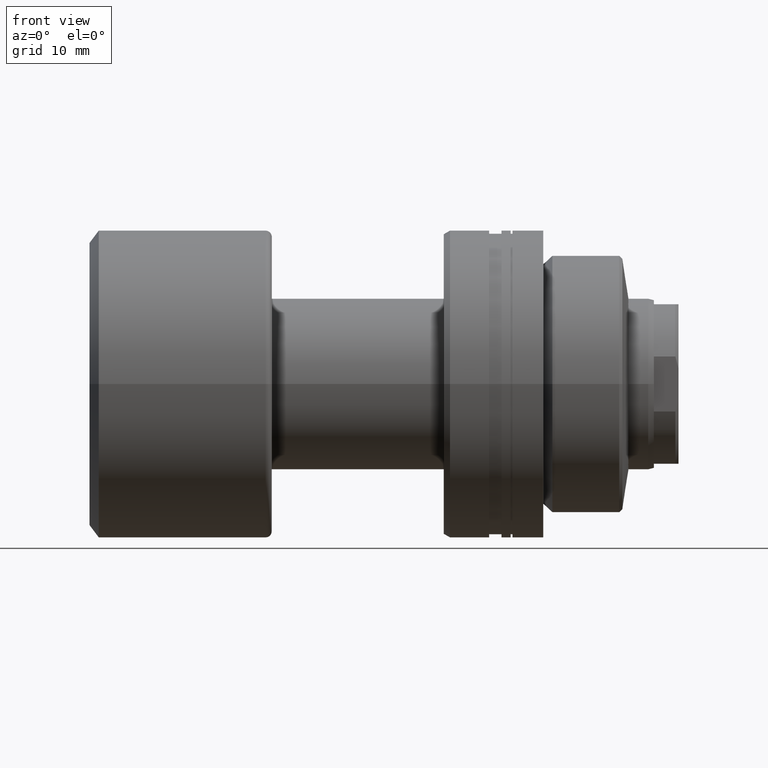
[diagram: clean part render]
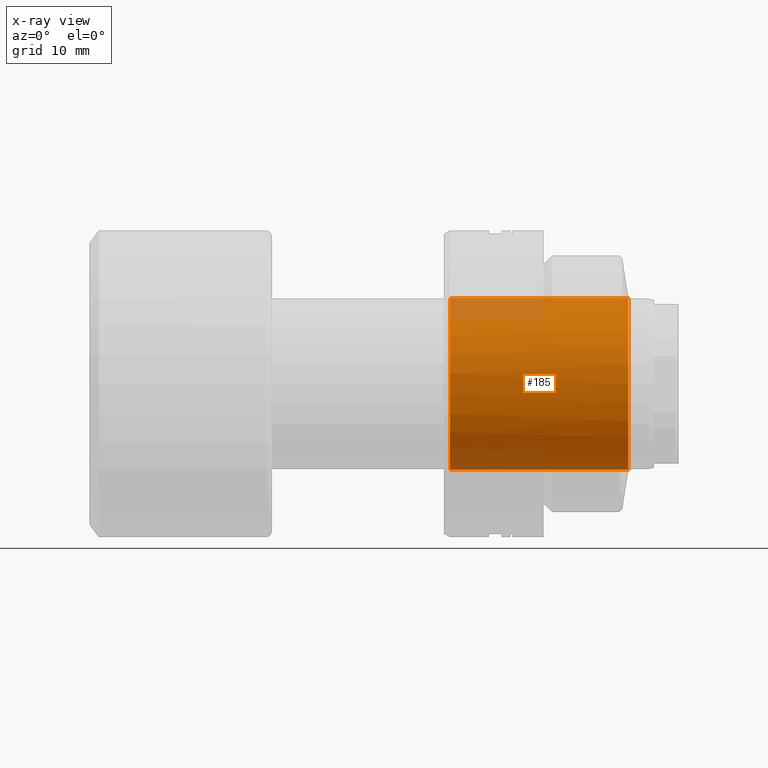
[diagram: x-ray — body ghosted, one internal face saturated and labeled with its STEP entity id]
A machine part, front view, then the same camera in x-ray: the body is ghosted and one INTERNAL B-rep face — a face not visible from any outside direction — is saturated and labeled: STEP entity #185.
In plain terms, the highlighted cylindrical surface (partial cylindrical patch) has radius 14 mm, axis along (1, 0, 0).
Its self-contained STEP definition (entity closure, byte-faithful):
#19 = DIRECTION ( 'NONE',  ( -1.000000000000000000, 0.000000000000000000, 0.000000000000000000 ) ) ;
#120 = CARTESIAN_POINT ( 'NONE',  ( -71.79797974644668557, 0.000000000000000000, 0.000000000000000000 ) ) ;
#183 = DIRECTION ( 'NONE',  ( 1.920586705545750655E-15, -1.000000000000000000, 0.000000000000000000 ) ) ;
#185 = ADVANCED_FACE ( 'NONE', ( #1365 ), #2281, .F. ) ;
#228 = CIRCLE ( 'NONE', #1864, 14.00000000000000178 ) ;
#243 = DIRECTION ( 'NONE',  ( 1.000000000000000000, -0.000000000000000000, -0.000000000000000000 ) ) ;
#266 = VERTEX_POINT ( 'NONE', #689 ) ;
#314 = DIRECTION ( 'NONE',  ( 1.000000000000000000, -0.000000000000000000, -0.000000000000000000 ) ) ;
#370 = CARTESIAN_POINT ( 'NONE',  ( -2.117073170732186593, 5.439376342916023700E-14, 0.000000000000000000 ) ) ;
#381 = CIRCLE ( 'NONE', #423, 14.00000000000000178 ) ;
#406 = VERTEX_POINT ( 'NONE', #448 ) ;
#409 = CARTESIAN_POINT ( 'NONE',  ( -71.79797974644668557, 0.000000000000000000, -14.00000000000000178 ) ) ;
#423 = AXIS2_PLACEMENT_3D ( 'NONE', #1109, #1653, #920 ) ;
#448 = CARTESIAN_POINT ( 'NONE',  ( -31.20000000000002061, 1.714505518806294835E-15, 14.00000000000000178 ) ) ;
#462 = EDGE_CURVE ( 'NONE', #266, #2227, #1838, .T. ) ;
#466 = DIRECTION ( 'NONE',  ( 1.000000000000000000, -0.000000000000000000, -0.000000000000000000 ) ) ;
#500 = AXIS2_PLACEMENT_3D ( 'NONE', #370, #1054, #183 ) ;
#511 = CARTESIAN_POINT ( 'NONE',  ( -2.117073170732186593, 1.714505518806296807E-15, 14.00000000000000178 ) ) ;
#588 = VERTEX_POINT ( 'NONE', #511 ) ;
#603 = ORIENTED_EDGE ( 'NONE', *, *, #770, .T. ) ;
#657 = DIRECTION ( 'NONE',  ( 0.000000000000000000, 0.000000000000000000, -1.000000000000000000 ) ) ;
#671 = LINE ( 'NONE', #1693, #1980 ) ;
#679 = CIRCLE ( 'NONE', #500, 14.00000000000000178 ) ;
#689 = CARTESIAN_POINT ( 'NONE',  ( -31.20000000000002061, 0.000000000000000000, -14.00000000000000178 ) ) ;
#704 = CARTESIAN_POINT ( 'NONE',  ( -31.20000000000002061, 0.000000000000000000, 0.000000000000000000 ) ) ;
#718 = DIRECTION ( 'NONE',  ( 0.000000000000000000, 0.000000000000000000, -1.000000000000000000 ) ) ;
#770 = EDGE_CURVE ( 'NONE', #266, #406, #228, .T. ) ;
#820 = AXIS2_PLACEMENT_3D ( 'NONE', #120, #466, #657 ) ;
#835 = ORIENTED_EDGE ( 'NONE', *, *, #1433, .F. ) ;
#845 = EDGE_CURVE ( 'NONE', #2227, #1808, #679, .T. ) ;
#920 = DIRECTION ( 'NONE',  ( 1.920586705545750655E-15, -1.000000000000000000, 0.000000000000000000 ) ) ;
#1054 = DIRECTION ( 'NONE',  ( -1.000000000000000000, -1.931394410353556421E-15, 0.000000000000000000 ) ) ;
#1064 = EDGE_CURVE ( 'NONE', #406, #588, #671, .T. ) ;
#1109 = CARTESIAN_POINT ( 'NONE',  ( -2.117073170732186593, 5.439376342916023700E-14, 0.000000000000000000 ) ) ;
#1252 = CARTESIAN_POINT ( 'NONE',  ( -2.117073170732159948, -13.99999999999994849, 0.000000000000000000 ) ) ;
#1365 = FACE_OUTER_BOUND ( 'NONE', #1595, .T. ) ;
#1433 = EDGE_CURVE ( 'NONE', #1808, #588, #381, .T. ) ;
#1595 = EDGE_LOOP ( 'NONE', ( #603, #2307, #835, #1698, #2145 ) ) ;
#1596 = VECTOR ( 'NONE', #243, 1000.000000000000000 ) ;
#1653 = DIRECTION ( 'NONE',  ( -1.000000000000000000, -1.931394410353556421E-15, 0.000000000000000000 ) ) ;
#1693 = CARTESIAN_POINT ( 'NONE',  ( -71.79797974644668557, 1.714505518806294835E-15, 14.00000000000000178 ) ) ;
#1698 = ORIENTED_EDGE ( 'NONE', *, *, #845, .F. ) ;
#1752 = CARTESIAN_POINT ( 'NONE',  ( -2.117073170732186593, 0.000000000000000000, -14.00000000000000178 ) ) ;
#1808 = VERTEX_POINT ( 'NONE', #1252 ) ;
#1838 = LINE ( 'NONE', #409, #1596 ) ;
#1864 = AXIS2_PLACEMENT_3D ( 'NONE', #704, #19, #718 ) ;
#1980 = VECTOR ( 'NONE', #314, 1000.000000000000000 ) ;
#2145 = ORIENTED_EDGE ( 'NONE', *, *, #462, .F. ) ;
#2227 = VERTEX_POINT ( 'NONE', #1752 ) ;
#2281 = CYLINDRICAL_SURFACE ( 'NONE', #820, 14.00000000000000178 ) ;
#2307 = ORIENTED_EDGE ( 'NONE', *, *, #1064, .T. ) ;